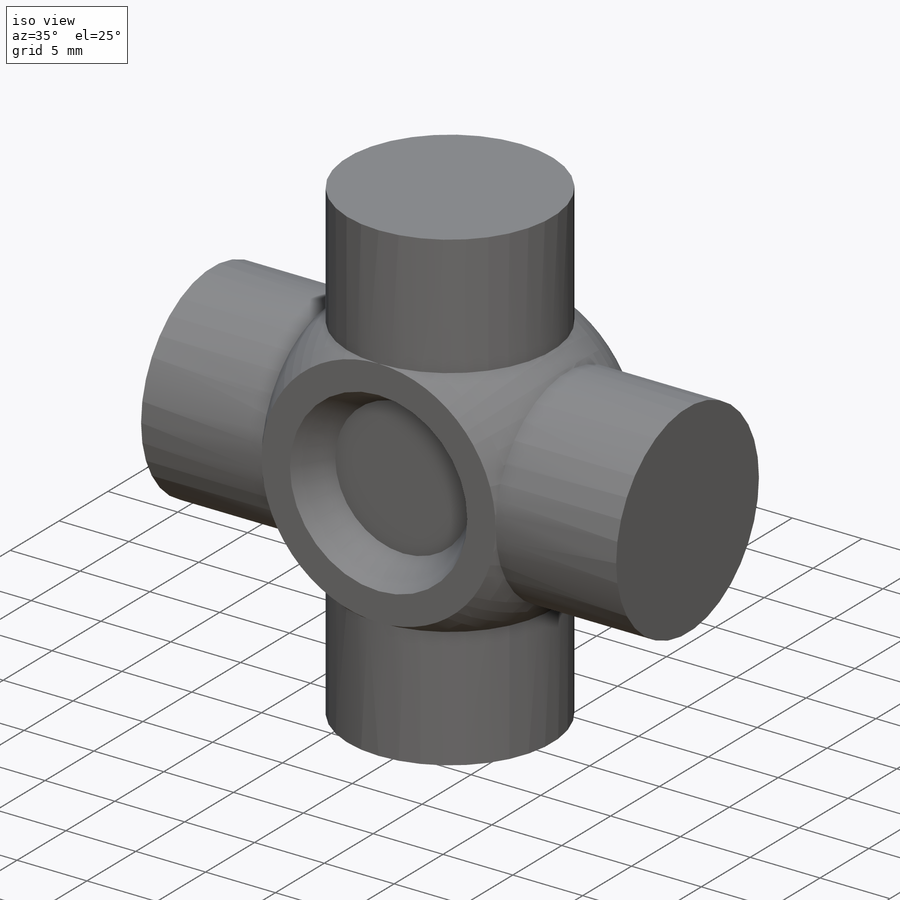
[diagram: iso view]
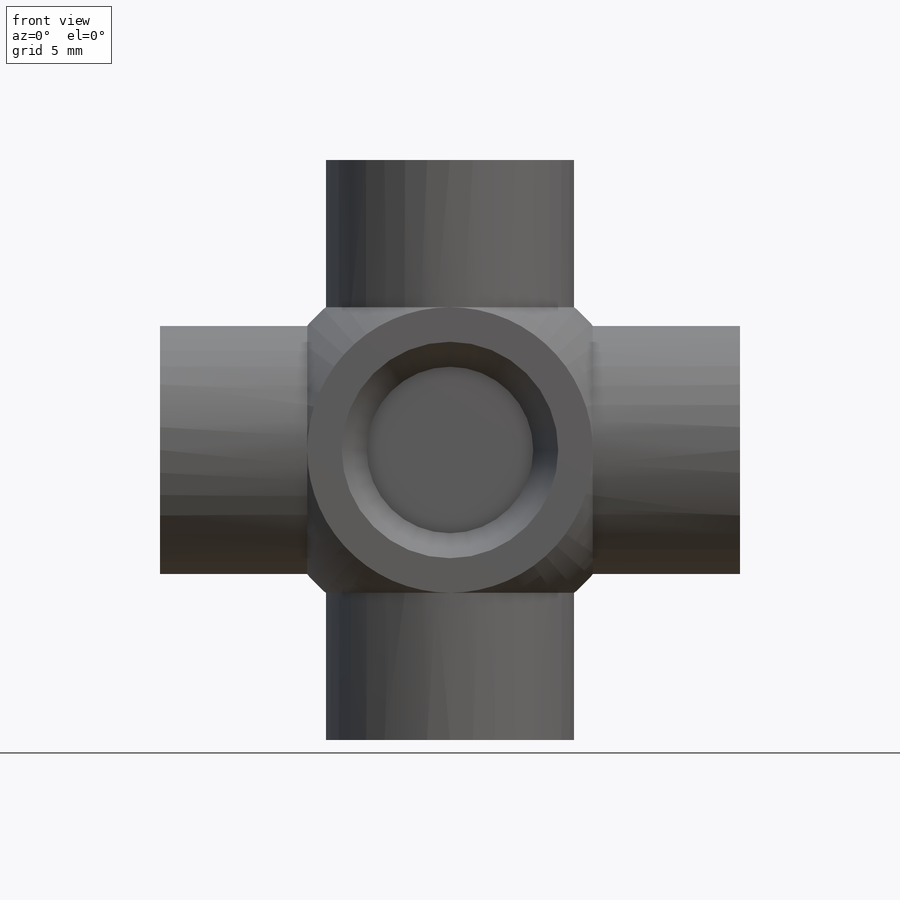
[diagram: front view]
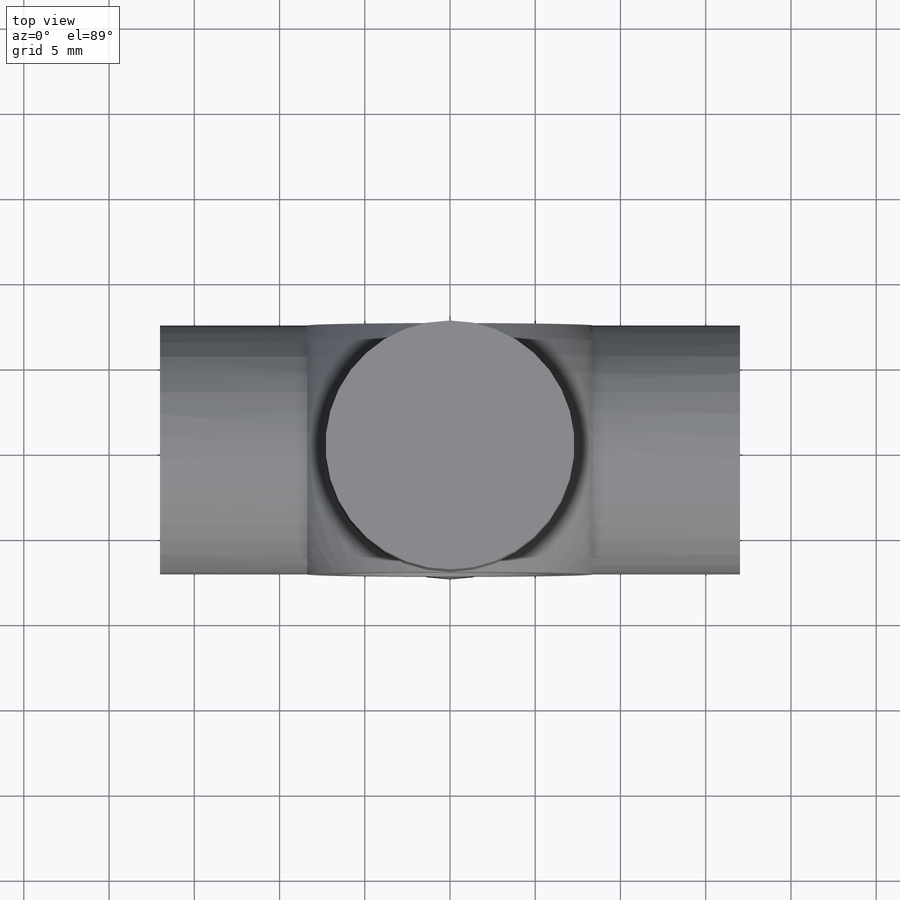
[diagram: top view]
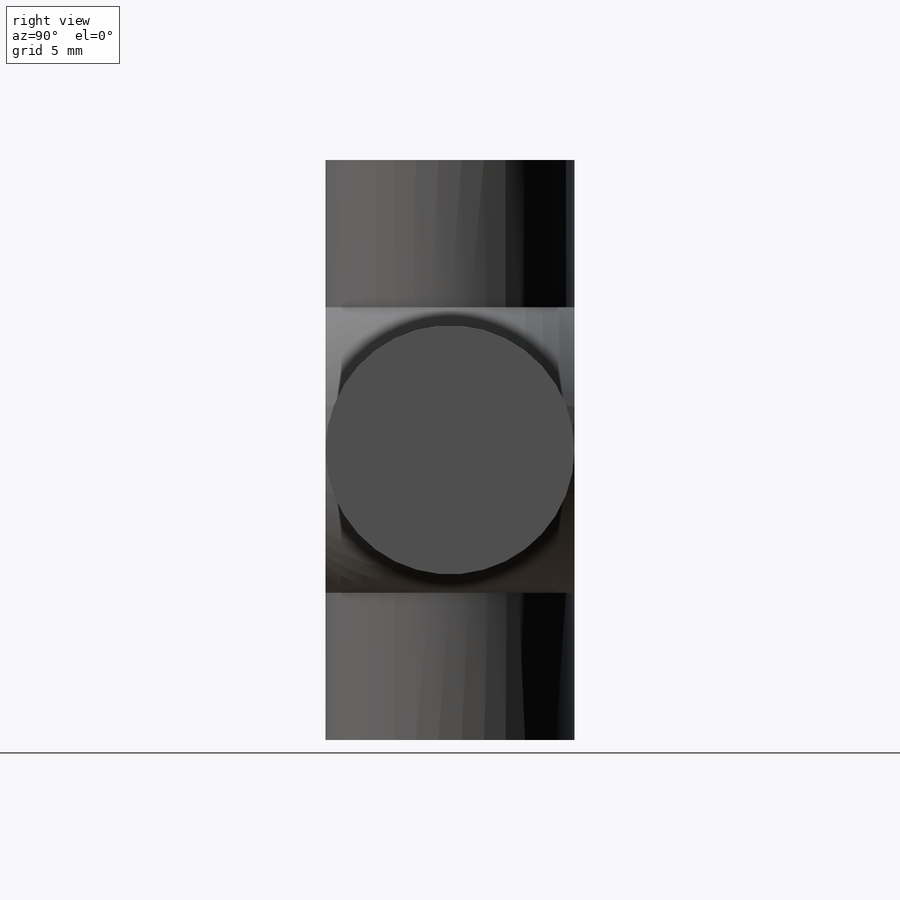
[diagram: right view]
SOLIDWORKS PART (.sldprt)
format: sldprt  version: not decoded by parser v0  size: 309,760 bytes
history: native  units: mm
features: sketch x8, extrude x4, cut_extrude x3, material x1, revolve x1, mirror x1 (+11 scaffold rows collapsed)
feature tree (29):
  scaffold x11  (default folders/planes/origin — collapsed)
  material  "Alloy Steel"
  sketch  "Sketch1"  dims[D1=22.225mm]
  revolve  "Revolve1"  Angle=360deg
  sketch  "Sketch2"  dims[c1.D1=6.35mm c1.D2=7.3025mm c2.D1=~16.752451mm]
  cut_extrude  "Cut-Extrude1"  Depth=20.574mm
  sketch  "Sketch3"  dims[D1=~3.54965mm D2=9.525mm]
  cut_extrude  "Cut-Extrude3"  Depth=22.606mm
  sketch  "Sketch6"  dims[D1=12.7mm]
  cut_extrude  "Cut-Extrude4"  Depth=2.54mm
  mirror  "Mirror1"
  sketch  "Sketch7"  dims[D1=0.0mm]
  extrude  "Boss-Extrude1"  Depth=8.636mm
  sketch  "Sketch11"  dims[D1=0.0mm]
  extrude  "Boss-Extrude2"  Depth=8.636mm
  sketch  "Sketch12"  dims[D1=0.0mm]
  extrude  "Boss-Extrude3"  Depth=8.636mm
  sketch  "Sketch13"  dims[D1=0.0mm]
  extrude  "Boss-Extrude4"  Depth=8.636mm
decode coverage: 16 of 17 modeling features carry decoded parameters
note: ~ marks probable driven/reference dimensions
note: suppression state not decoded; provenance and decode notes live in map.json
